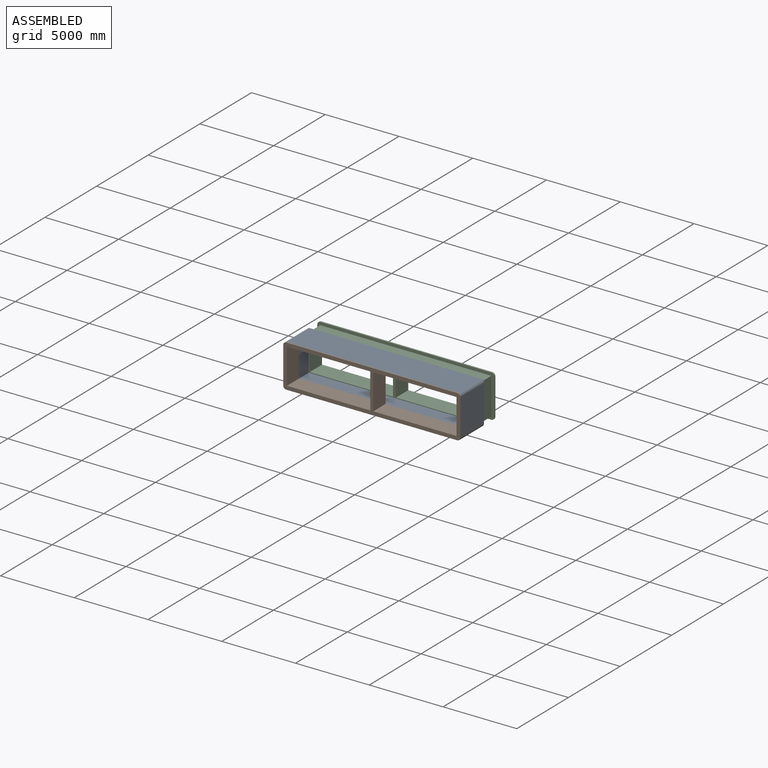
[diagram: assembled view]
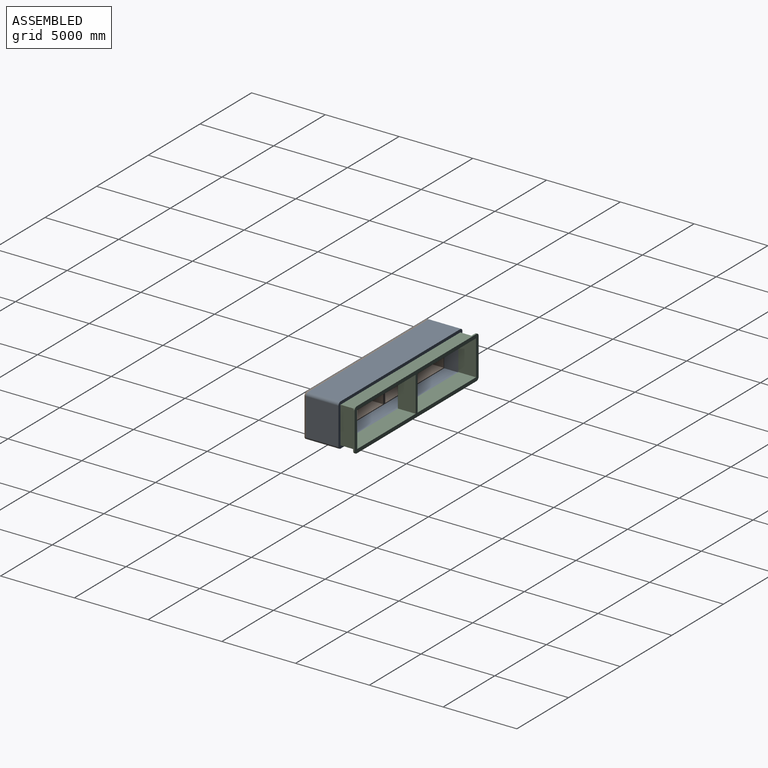
[diagram: assembled view, second angle]
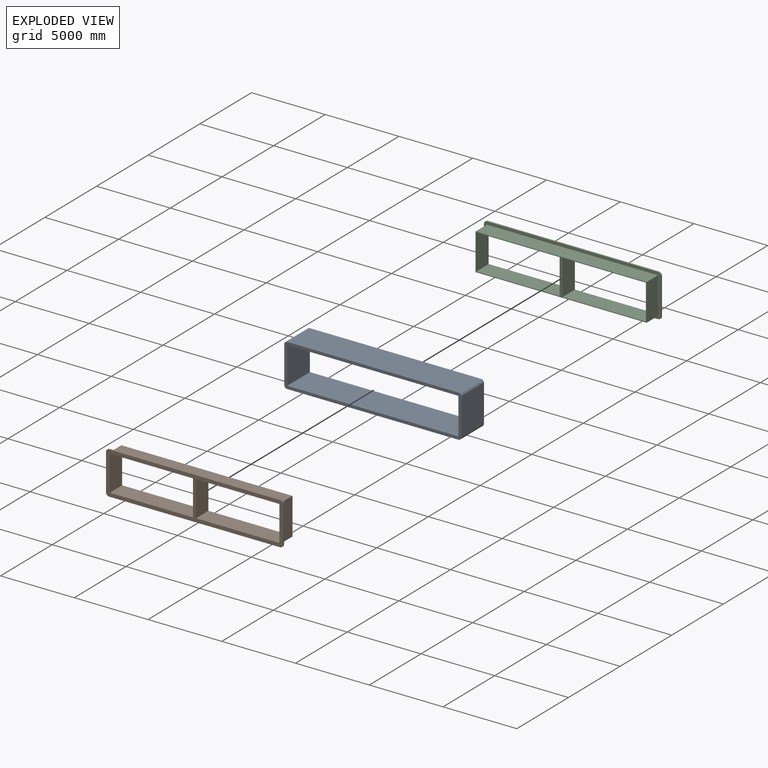
[diagram: exploded view]
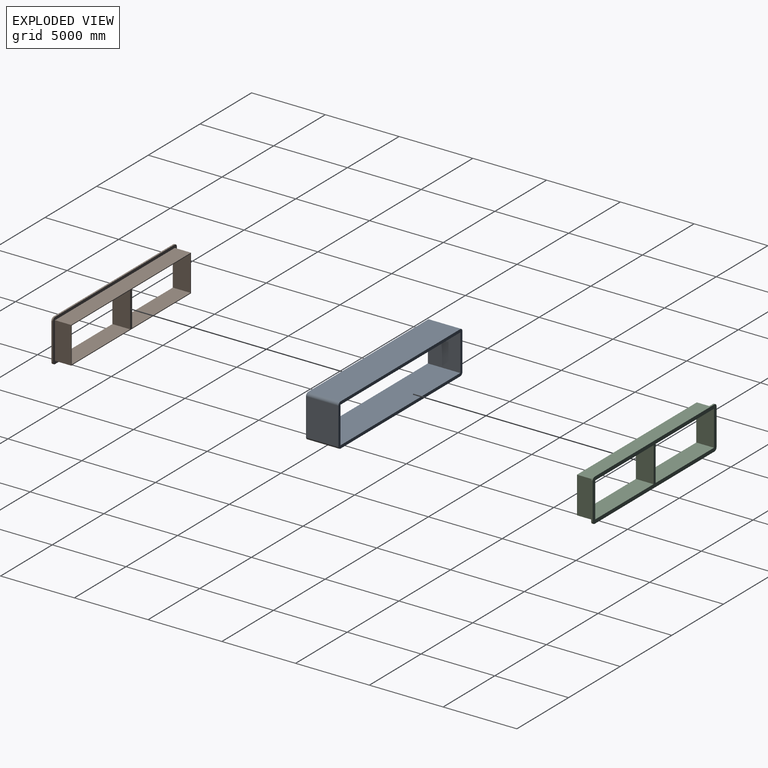
[diagram: exploded view, second angle]
ASSEMBLY  parts=3 mates=2
PART A: 104 faces, bbox 12000x2200x2890 mm
  f0: plane 12000x2890mm, normal (0,-1,0), area 5646463.7mm2, adj f1,f2,f4,f5,f6,f7,f8,f9
  f1: plane 11600x2200mm, normal (0,0,1), area 25520000mm2, adj f0,f3,f6,f7
  f2: plane 2490x2200mm, normal (1,0,0), area 5478000mm2, adj f0,f3,f10,f12
  f3: plane 12000x2890mm, normal (0,1,0), area 5761663.7mm2, adj f1,f2,f4,f5,f6,f7,f8,f9
  f4: plane 2490x2200mm, normal (-1,0,0), area 5478000mm2, adj f0,f3,f11,f13
  f5: plane 11600x2200mm, normal (0,0,-1), area 25520000mm2, adj f0,f3,f12,f13
  f6: plane 2490x2200mm, normal (1,0,0), area 5478000mm2, adj f0,f1,f3,f8
  f7: plane 2490x2200mm, normal (-1,0,0), area 5478000mm2, adj f0,f1,f3,f8
  f8: plane 11600x2200mm, normal (0,0,-1), area 25520000mm2, adj f0,f3,f6,f7
  f9: plane 11600x2200mm, normal (0,0,1), area 25520000mm2, adj f0,f3,f10,f11
  f10: cylinder r=200mm len=2200mm, axis (0,1,0), area 691150.4mm2, adj f0,f2,f3,f9
  f11: cylinder r=200mm len=2200mm, axis (0,1,0), area 691150.4mm2, adj f0,f3,f4,f9
  f12: cylinder r=200mm len=2200mm, axis (0,1,0), area 691150.4mm2, adj f0,f2,f3,f5
  f13: cylinder r=200mm len=2200mm, axis (0,-1,0), area 691150.4mm2, adj f0,f3,f4,f5
  f14: plane 1710.55x80mm, normal (0,0,-1), area 136844mm2, adj f0,f15,f17,f18
  f15: plane 1710.55x80mm, normal (1,0,0), area 136844mm2, adj f0,f14,f16,f18
  f16: plane 1710.55x80mm, normal (0,0,1), area 136844mm2, adj f0,f15,f17,f18
  f17: plane 1710.55x80mm, normal (-1,0,0), area 136844mm2, adj f0,f14,f16,f18
  f18: plane 80x80mm, normal (0,-1,0), area 6400mm2, adj f14,f15,f16,f17
  f19: plane 1710.55x80mm, normal (0,0,-1), area 136844mm2, adj f0,f20,f22,f23
  f20: plane 1710.55x80mm, normal (1,0,0), area 136844mm2, adj f0,f19,f21,f23
  f21: plane 1710.55x80mm, normal (0,0,1), area 136844mm2, adj f0,f20,f22,f23
  f22: plane 1710.55x80mm, normal (-1,0,0), area 136844mm2, adj f0,f19,f21,f23
  f23: plane 80x80mm, normal (0,-1,0), area 6400mm2, adj f19,f20,f21,f22
  f24: plane 1710.55x80mm, normal (0,0,-1), area 136844mm2, adj f0,f25,f27,f28
  f25: plane 1710.55x80mm, normal (1,0,0), area 136844mm2, adj f0,f24,f26,f28
  f26: plane 1710.55x80mm, normal (0,0,1), area 136844mm2, adj f0,f25,f27,f28
  f27: plane 1710.55x80mm, normal (-1,0,0), area 136844mm2, adj f0,f24,f26,f28
  f28: plane 80x80mm, normal (0,-1,0), area 6400mm2, adj f24,f25,f26,f27
  f29: plane 1710.55x80mm, normal (0,0,-1), area 136844mm2, adj f0,f30,f32,f33
  f30: plane 1710.55x80mm, normal (1,0,0), area 136844mm2, adj f0,f29,f31,f33
  f31: plane 1710.55x80mm, normal (0,0,1), area 136844mm2, adj f0,f30,f32,f33
  f32: plane 1710.55x80mm, normal (-1,0,0), area 136844mm2, adj f0,f29,f31,f33
  f33: plane 80x80mm, normal (0,-1,0), area 6400mm2, adj f29,f30,f31,f32
  f34: plane 1710.55x80mm, normal (0,0,-1), area 136844mm2, adj f0,f35,f37,f38
  f35: plane 1710.55x80mm, normal (1,0,0), area 136844mm2, adj f0,f34,f36,f38
  f36: plane 1710.55x80mm, normal (0,0,1), area 136844mm2, adj f0,f35,f37,f38
  f37: plane 1710.55x80mm, normal (-1,0,0), area 136844mm2, adj f0,f34,f36,f38
  f38: plane 80x80mm, normal (0,-1,0), area 6400mm2, adj f34,f35,f36,f37
  f39: plane 1710.55x80mm, normal (0,0,-1), area 136844mm2, adj f0,f40,f42,f43
  f40: plane 1710.55x80mm, normal (1,0,0), area 136844mm2, adj f0,f39,f41,f43
  f41: plane 1710.55x80mm, normal (0,0,1), area 136844mm2, adj f0,f40,f42,f43
  f42: plane 1710.55x80mm, normal (-1,0,0), area 136844mm2, adj f0,f39,f41,f43
  f43: plane 80x80mm, normal (0,-1,0), area 6400mm2, adj f39,f40,f41,f42
  f44: plane 1710.55x80mm, normal (0,0,-1), area 136844mm2, adj f0,f45,f47,f48
  f45: plane 1710.55x80mm, normal (1,0,0), area 136844mm2, adj f0,f44,f46,f48
  f46: plane 1710.55x80mm, normal (0,0,1), area 136844mm2, adj f0,f45,f47,f48
  f47: plane 1710.55x80mm, normal (-1,0,0), area 136844mm2, adj f0,f44,f46,f48
  f48: plane 80x80mm, normal (0,-1,0), area 6400mm2, adj f44,f45,f46,f47
  f49: plane 1710.55x80mm, normal (0,0,-1), area 136844mm2, adj f0,f50,f52,f53
  f50: plane 1710.55x80mm, normal (1,0,0), area 136844mm2, adj f0,f49,f51,f53
  f51: plane 1710.55x80mm, normal (0,0,1), area 136844mm2, adj f0,f50,f52,f53
  f52: plane 1710.55x80mm, normal (-1,0,0), area 136844mm2, adj f0,f49,f51,f53
  f53: plane 80x80mm, normal (0,-1,0), area 6400mm2, adj f49,f50,f51,f52
  f54: plane 1710.55x80mm, normal (0,0,-1), area 136844mm2, adj f0,f55,f57,f58
  f55: plane 1710.55x80mm, normal (1,0,0), area 136844mm2, adj f0,f54,f56,f58
  f56: plane 1710.55x80mm, normal (0,0,1), area 136844mm2, adj f0,f55,f57,f58
  f57: plane 1710.55x80mm, normal (-1,0,0), area 136844mm2, adj f0,f54,f56,f58
  f58: plane 80x80mm, normal (0,-1,0), area 6400mm2, adj f54,f55,f56,f57
  f59: plane 1710.55x80mm, normal (0,0,-1), area 136844mm2, adj f0,f60,f62,f63
  f60: plane 1710.55x80mm, normal (1,0,0), area 136844mm2, adj f0,f59,f61,f63
  f61: plane 1710.55x80mm, normal (0,0,1), area 136844mm2, adj f0,f60,f62,f63
  f62: plane 1710.55x80mm, normal (-1,0,0), area 136844mm2, adj f0,f59,f61,f63
  f63: plane 80x80mm, normal (0,-1,0), area 6400mm2, adj f59,f60,f61,f62
  f64: plane 1710.55x80mm, normal (0,0,-1), area 136844mm2, adj f0,f65,f67,f68
  f65: plane 1710.55x80mm, normal (1,0,0), area 136844mm2, adj f0,f64,f66,f68
  f66: plane 1710.55x80mm, normal (0,0,1), area 136844mm2, adj f0,f65,f67,f68
  f67: plane 1710.55x80mm, normal (-1,0,0), area 136844mm2, adj f0,f64,f66,f68
  f68: plane 80x80mm, normal (0,-1,0), area 6400mm2, adj f64,f65,f66,f67
  f69: plane 1710.55x80mm, normal (0,0,-1), area 136844mm2, adj f0,f70,f72,f73
  f70: plane 1710.55x80mm, normal (1,0,0), area 136844mm2, adj f0,f69,f71,f73
  f71: plane 1710.55x80mm, normal (0,0,1), area 136844mm2, adj f0,f70,f72,f73
  f72: plane 1710.55x80mm, normal (-1,0,0), area 136844mm2, adj f0,f69,f71,f73
  f73: plane 80x80mm, normal (0,-1,0), area 6400mm2, adj f69,f70,f71,f72
  f74: plane 1710.55x80mm, normal (0,0,-1), area 136844mm2, adj f0,f75,f77,f78
  f75: plane 1710.55x80mm, normal (1,0,0), area 136844mm2, adj f0,f74,f76,f78
  f76: plane 1710.55x80mm, normal (0,0,1), area 136844mm2, adj f0,f75,f77,f78
  f77: plane 1710.55x80mm, normal (-1,0,0), area 136844mm2, adj f0,f74,f76,f78
  f78: plane 80x80mm, normal (0,-1,0), area 6400mm2, adj f74,f75,f76,f77
  f79: plane 1710.55x80mm, normal (0,0,-1), area 136844mm2, adj f0,f80,f82,f83
  f80: plane 1710.55x80mm, normal (1,0,0), area 136844mm2, adj f0,f79,f81,f83
  f81: plane 1710.55x80mm, normal (0,0,1), area 136844mm2, adj f0,f80,f82,f83
  f82: plane 1710.55x80mm, normal (-1,0,0), area 136844mm2, adj f0,f79,f81,f83
  f83: plane 80x80mm, normal (0,-1,0), area 6400mm2, adj f79,f80,f81,f82
  f84: plane 1710.55x80mm, normal (0,0,-1), area 136844mm2, adj f0,f85,f87,f88
  f85: plane 1710.55x80mm, normal (1,0,0), area 136844mm2, adj f0,f84,f86,f88
  f86: plane 1710.55x80mm, normal (0,0,1), area 136844mm2, adj f0,f85,f87,f88
  f87: plane 1710.55x80mm, normal (-1,0,0), area 136844mm2, adj f0,f84,f86,f88
  f88: plane 80x80mm, normal (0,-1,0), area 6400mm2, adj f84,f85,f86,f87
  f89: plane 1710.55x80mm, normal (0,0,-1), area 136844mm2, adj f0,f90,f92,f93
  f90: plane 1710.55x80mm, normal (1,0,0), area 136844mm2, adj f0,f89,f91,f93
  f91: plane 1710.55x80mm, normal (0,0,1), area 136844mm2, adj f0,f90,f92,f93
  f92: plane 1710.55x80mm, normal (-1,0,0), area 136844mm2, adj f0,f89,f91,f93
  f93: plane 80x80mm, normal (0,-1,0), area 6400mm2, adj f89,f90,f91,f92
  f94: plane 1710.55x80mm, normal (0,0,-1), area 136844mm2, adj f0,f95,f97,f98
  f95: plane 1710.55x80mm, normal (1,0,0), area 136844mm2, adj f0,f94,f96,f98
  f96: plane 1710.55x80mm, normal (0,0,1), area 136844mm2, adj f0,f95,f97,f98
  f97: plane 1710.55x80mm, normal (-1,0,0), area 136844mm2, adj f0,f94,f96,f98
  f98: plane 80x80mm, normal (0,-1,0), area 6400mm2, adj f94,f95,f96,f97
  f99: plane 1710.55x80mm, normal (0,0,1), area 136844mm2, adj f0,f100,f102,f103
  f100: plane 1710.55x80mm, normal (-1,0,0), area 136844mm2, adj f0,f99,f101,f103
  f101: plane 1710.55x80mm, normal (0,0,-1), area 136844mm2, adj f0,f100,f102,f103
  f102: plane 1710.55x80mm, normal (1,0,0), area 136844mm2, adj f0,f99,f101,f103
  f103: plane 80x80mm, normal (0,-1,0), area 6400mm2, adj f99,f100,f101,f102
PART B: 23 faces, bbox 12000x1200x2890 mm
  f0: plane 5650x1200mm, normal (0,0,1), area 6780000mm2, adj f10,f17,f20,f21
  f1: plane 5650x1200mm, normal (0,0,-1), area 6780000mm2, adj f10,f17,f20,f21
  f2: plane 2490x100mm, normal (1,0,0), area 249000mm2, adj f3,f9,f10,f11
  f3: cylinder r=200mm len=200mm, axis (0,1,0), area 31415.9mm2, adj f2,f4,f10,f11
  f4: plane 11600x100mm, normal (0,0,1), area 1160000mm2, adj f3,f5,f10,f11
  f5: cylinder r=200mm len=200mm, axis (0,1,0), area 31415.9mm2, adj f4,f6,f10,f11
  f6: plane 2490x100mm, normal (-1,0,0), area 249000mm2, adj f5,f7,f10,f11
  f7: cylinder r=200mm len=200mm, axis (0,1,0), area 31415.9mm2, adj f6,f8,f10,f11
  f8: plane 11600x100mm, normal (0,0,-1), area 1160000mm2, adj f7,f9,f10,f11
  f9: cylinder r=200mm len=200mm, axis (0,1,0), area 31415.9mm2, adj f2,f8,f10,f11
  f10: plane 12000x2890mm, normal (0,-1,0), area 7638663.7mm2, adj f0,f1,f2,f3,f4,f5,f6,f7
  f11: plane 12000x2890mm, normal (0,1,0), area 5761663.7mm2, adj f2,f3,f4,f5,f6,f7,f8,f9
  f12: plane 11600x1100mm, normal (0,0,1), area 12760000mm2, adj f11,f13,f15,f20
  f13: plane 2490x1100mm, normal (-1,0,0), area 2739000mm2, adj f11,f12,f14,f20
  f14: plane 11600x1100mm, normal (0,0,-1), area 12760000mm2, adj f11,f13,f15,f20
  f15: plane 2490x1100mm, normal (1,0,0), area 2739000mm2, adj f11,f12,f14,f20
  f16: plane 5650x1200mm, normal (0,0,1), area 6780000mm2, adj f10,f19,f20,f22
  f17: plane 2390x1200mm, normal (1,0,0), area 2868000mm2, adj f0,f1,f10,f20
  f18: plane 5650x1200mm, normal (0,0,-1), area 6780000mm2, adj f10,f19,f20,f22
  f19: plane 2390x1200mm, normal (-1,0,0), area 2868000mm2, adj f10,f16,f18,f20
  f20: plane 11600x2490mm, normal (0,1,0), area 1877000mm2, adj f0,f1,f12,f13,f14,f15,f16,f17
  f21: plane 2390x1200mm, normal (-1,0,0), area 2868000mm2, adj f0,f1,f10,f20
  f22: plane 2390x1200mm, normal (1,0,0), area 2868000mm2, adj f10,f16,f18,f20
PART C: 27 faces, bbox 12000x1200x2890 mm
  f0: plane 5652.14x1200mm, normal (0,0,-1), area 6782573.5mm2, adj f11,f17,f21,f26
  f1: plane 5652.14x1200mm, normal (0,0,1), area 6782573.5mm2, adj f11,f17,f21,f26
  f2: plane 5702.14x1100mm, normal (0,0,-1), area 6272359mm2, adj f12,f15,f21,f22
  f3: plane 11600x100mm, normal (0,0,1), area 1160000mm2, adj f4,f10,f11,f12
  f4: cylinder r=200mm len=200mm, axis (0,-1,0), area 31415.9mm2, adj f3,f5,f11,f12
  f5: plane 2490x100mm, normal (1,0,0), area 249000mm2, adj f4,f6,f11,f12
  f6: cylinder r=200mm len=200mm, axis (0,-1,0), area 31415.9mm2, adj f5,f7,f11,f12
  f7: plane 11600x100mm, normal (0,0,-1), area 1160000mm2, adj f6,f8,f11,f12
  f8: cylinder r=200mm len=200mm, axis (0,-1,0), area 31415.9mm2, adj f7,f9,f11,f12
  f9: plane 2490x100mm, normal (-1,0,0), area 249000mm2, adj f8,f10,f11,f12
  f10: cylinder r=200mm len=200mm, axis (0,-1,0), area 31415.9mm2, adj f3,f9,f11,f12
  f11: plane 12000x2890mm, normal (0,1,0), area 7638663.7mm2, adj f0,f1,f3,f4,f5,f6,f7,f8
  f12: plane 12000x2890mm, normal (0,-1,0), area 5760958.6mm2, adj f2,f3,f4,f5,f6,f7,f8,f9
  f13: plane 2490x1100mm, normal (-1,0,0), area 2739000mm2, adj f12,f14,f20,f21
  f14: plane 11600x1100mm, normal (0,0,1), area 12760000mm2, adj f12,f13,f15,f21
  f15: plane 2490x1100mm, normal (1,0,0), area 2739000mm2, adj f2,f12,f14,f21
  f16: plane 5647.86x1200mm, normal (0,0,1), area 6777426.5mm2, adj f11,f19,f21,f25
  f17: plane 2390x1200mm, normal (-1,0,0), area 2868000mm2, adj f0,f1,f11,f21
  f18: plane 5647.86x1200mm, normal (0,0,-1), area 6777426.5mm2, adj f11,f19,f21,f25
  f19: plane 2390x1200mm, normal (1,0,0), area 2868000mm2, adj f11,f16,f18,f21
  f20: plane 5697.86x1100mm, normal (0,0,-1), area 6267641mm2, adj f12,f13,f21,f23
  f21: plane 11600x2493.53mm, normal (0,-1,0), area 1877705.1mm2, adj f0,f1,f2,f13,f14,f15,f16,f17
  f22: plane 1100x3.53mm, normal (1,0,0), area 3878mm2, adj f2,f12,f21,f24
  f23: plane 1100x3.53mm, normal (-1,0,0), area 3878mm2, adj f12,f20,f21,f24
  f24: plane 1100x200mm, normal (0,0,-1), area 220000mm2, adj f12,f21,f22,f23
  f25: plane 2390x1200mm, normal (-1,0,0), area 2868000mm2, adj f11,f16,f18,f21
  f26: plane 2390x1200mm, normal (1,0,0), area 2868000mm2, adj f0,f1,f11,f21
PLACE A at identity fixed
PLACE B at identity
PLACE C t=(0,1000,0)mm
MATE slider B.f7 <-> A.f13  axis (0,1,0) through (-5800,0,200)mm
MATE slider C.f8 <-> A.f13  axis (0,-1,0) through (-5800,1000,200)mm
